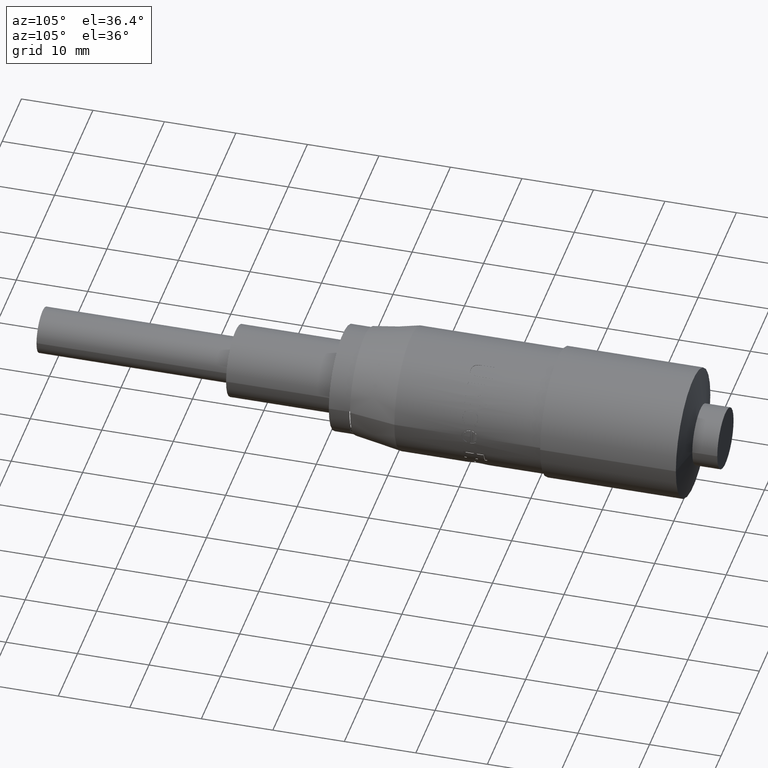
[diagram: clean part render]
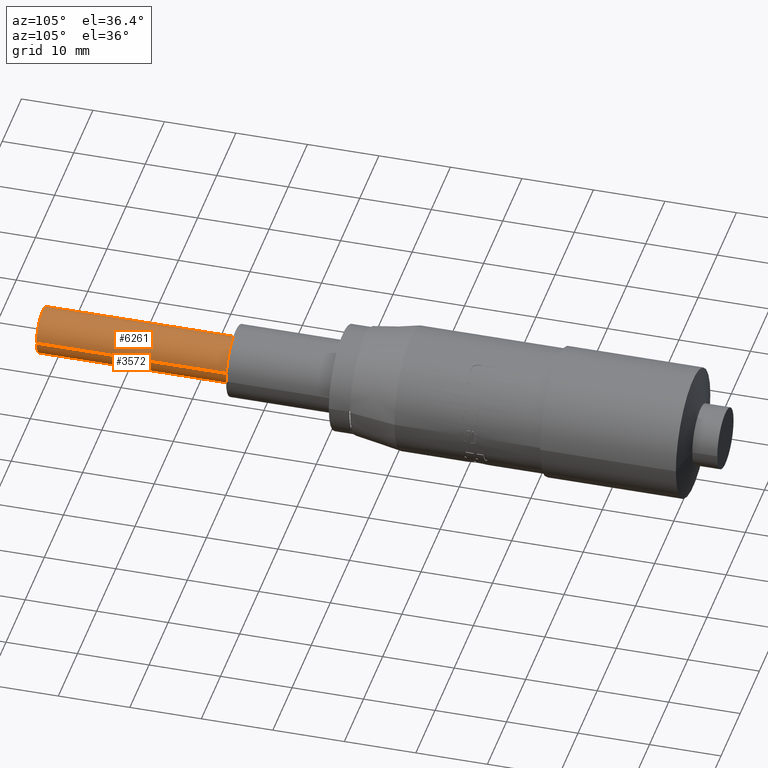
[diagram: same view with one multi-face feature highlighted, each face labeled with its STEP entity id]
A machine part, auxiliary view. The highlighted faces form ONE feature: a constant-radius fillet chain: 2 tangent blend faces with common blend radius 3.175 mm. The faces share edges in the B-rep.
Their STEP definitions:
[1] entity #6261 (Cylinder):
#125 = EDGE_CURVE ( 'NONE', #4423, #4210, #1801, .T. ) ;
#525 = DIRECTION ( 'NONE',  ( -1.058937486943297600E-016, 1.000000000000000000, -0.0000000000000000000 ) ) ;
#687 = CARTESIAN_POINT ( 'NONE',  ( 30.47796289245997100, -29.97381721609986700, 28.87709965591408000 ) ) ;
#692 = DIRECTION ( 'NONE',  ( -1.058937486943297600E-016, 1.000000000000000000, -0.0000000000000000000 ) ) ;
#1144 = ORIENTED_EDGE ( 'NONE', *, *, #3514, .T. ) ;
#1340 = CARTESIAN_POINT ( 'NONE',  ( 30.47796289245996700, 45.02618278390013300, 28.87709965591408000 ) ) ;
#1391 = ORIENTED_EDGE ( 'NONE', *, *, #9741, .T. ) ;
#1407 = CARTESIAN_POINT ( 'NONE',  ( 33.65296289245996100, 41.06720585310775100, 28.87709965591408000 ) ) ;
#1660 = ORIENTED_EDGE ( 'NONE', *, *, #5749, .T. ) ;
#1801 = LINE ( 'NONE', #9529, #10928 ) ;
#2003 = AXIS2_PLACEMENT_3D ( 'NONE', #8880, #3577, #9769 ) ;
#2225 = VERTEX_POINT ( 'NONE', #3353 ) ;
#2740 = AXIS2_PLACEMENT_3D ( 'NONE', #4054, #10236, #4944 ) ;
#3162 = ORIENTED_EDGE ( 'NONE', *, *, #125, .F. ) ;
#3353 = CARTESIAN_POINT ( 'NONE',  ( 36.82796289245995800, 45.02618278390013300, 28.87709965591408000 ) ) ;
#3514 = EDGE_CURVE ( 'NONE', #2225, #4210, #6814, .T. ) ;
#3544 = FACE_OUTER_BOUND ( 'NONE', #4909, .T. ) ;
#3577 = DIRECTION ( 'NONE',  ( -1.058937486943297600E-016, 1.000000000000000000, -0.0000000000000000000 ) ) ;
#4054 = CARTESIAN_POINT ( 'NONE',  ( 33.65296289245996100, 45.02618278390013300, 28.87709965591408000 ) ) ;
#4210 = VERTEX_POINT ( 'NONE', #1340 ) ;
#4342 = LINE ( 'NONE', #4353, #8776 ) ;
#4353 = CARTESIAN_POINT ( 'NONE',  ( 36.82796289245995800, 41.06720585310775100, 28.87709965591408000 ) ) ;
#4423 = VERTEX_POINT ( 'NONE', #687 ) ;
#4909 = EDGE_LOOP ( 'NONE', ( #1660, #1391, #1144, #3162 ) ) ;
#4944 = DIRECTION ( 'NONE',  ( 1.000000000000000000, 0.0000000000000000000, 0.0000000000000000000 ) ) ;
#5678 = VERTEX_POINT ( 'NONE', #7890 ) ;
#5749 = EDGE_CURVE ( 'NONE', #4423, #5678, #5930, .T. ) ;
#5852 = DIRECTION ( 'NONE',  ( -1.000000000000000000, 0.0000000000000000000, 0.0000000000000000000 ) ) ;
#5930 = CIRCLE ( 'NONE', #2003, 3.174999999999997200 ) ;
#6261 = ADVANCED_FACE ( 'NONE', ( #3544 ), #7147, .T. ) ;
#6814 = CIRCLE ( 'NONE', #2740, 3.174999999999997200 ) ;
#7147 = CYLINDRICAL_SURFACE ( 'NONE', #9498, 3.174999999999997200 ) ;
#7890 = CARTESIAN_POINT ( 'NONE',  ( 36.82796289245996500, -29.97381721609986700, 28.87709965591408000 ) ) ;
#8776 = VECTOR ( 'NONE', #10546, 1000.000000000000000 ) ;
#8880 = CARTESIAN_POINT ( 'NONE',  ( 33.65296289245996800, -29.97381721609986700, 28.87709965591408000 ) ) ;
#9498 = AXIS2_PLACEMENT_3D ( 'NONE', #1407, #525, #5852 ) ;
#9529 = CARTESIAN_POINT ( 'NONE',  ( 30.47796289245996300, 41.06720585310775100, 28.87709965591408000 ) ) ;
#9741 = EDGE_CURVE ( 'NONE', #5678, #2225, #4342, .T. ) ;
#9769 = DIRECTION ( 'NONE',  ( -1.000000000000000000, 0.0000000000000000000, 0.0000000000000000000 ) ) ;
#10236 = DIRECTION ( 'NONE',  ( 1.058937486943297600E-016, -1.000000000000000000, 0.0000000000000000000 ) ) ;
#10546 = DIRECTION ( 'NONE',  ( -1.058937486943297600E-016, 1.000000000000000000, -0.0000000000000000000 ) ) ;
#10928 = VECTOR ( 'NONE', #692, 1000.000000000000000 ) ;
[2] entity #3572 (Cylinder):
#125 = EDGE_CURVE ( 'NONE', #4423, #4210, #1801, .T. ) ;
#277 = ORIENTED_EDGE ( 'NONE', *, *, #9741, .F. ) ;
#447 = ORIENTED_EDGE ( 'NONE', *, *, #5387, .T. ) ;
#687 = CARTESIAN_POINT ( 'NONE',  ( 30.47796289245997100, -29.97381721609986700, 28.87709965591408000 ) ) ;
#692 = DIRECTION ( 'NONE',  ( -1.058937486943297600E-016, 1.000000000000000000, -0.0000000000000000000 ) ) ;
#722 = CARTESIAN_POINT ( 'NONE',  ( 33.65296289245996100, 45.02618278390013300, 28.87709965591408000 ) ) ;
#1340 = CARTESIAN_POINT ( 'NONE',  ( 30.47796289245996700, 45.02618278390013300, 28.87709965591408000 ) ) ;
#1434 = DIRECTION ( 'NONE',  ( -1.058937486943297600E-016, 1.000000000000000000, -0.0000000000000000000 ) ) ;
#1613 = DIRECTION ( 'NONE',  ( 1.000000000000000000, 0.0000000000000000000, 0.0000000000000000000 ) ) ;
#1655 = CIRCLE ( 'NONE', #2816, 3.174999999999997200 ) ;
#1801 = LINE ( 'NONE', #9529, #10928 ) ;
#2225 = VERTEX_POINT ( 'NONE', #3353 ) ;
#2816 = AXIS2_PLACEMENT_3D ( 'NONE', #722, #6905, #1613 ) ;
#3353 = CARTESIAN_POINT ( 'NONE',  ( 36.82796289245995800, 45.02618278390013300, 28.87709965591408000 ) ) ;
#3572 = ADVANCED_FACE ( 'NONE', ( #11248 ), #5698, .T. ) ;
#3611 = DIRECTION ( 'NONE',  ( -1.058937486943297600E-016, 1.000000000000000000, -0.0000000000000000000 ) ) ;
#4210 = VERTEX_POINT ( 'NONE', #1340 ) ;
#4342 = LINE ( 'NONE', #4353, #8776 ) ;
#4353 = CARTESIAN_POINT ( 'NONE',  ( 36.82796289245995800, 41.06720585310775100, 28.87709965591408000 ) ) ;
#4423 = VERTEX_POINT ( 'NONE', #687 ) ;
#5387 = EDGE_CURVE ( 'NONE', #4210, #2225, #1655, .T. ) ;
#5678 = VERTEX_POINT ( 'NONE', #7890 ) ;
#5698 = CYLINDRICAL_SURFACE ( 'NONE', #6899, 3.174999999999997200 ) ;
#5876 = DIRECTION ( 'NONE',  ( -1.000000000000000000, 0.0000000000000000000, 0.0000000000000000000 ) ) ;
#5967 = AXIS2_PLACEMENT_3D ( 'NONE', #8915, #3611, #9804 ) ;
#6733 = CARTESIAN_POINT ( 'NONE',  ( 33.65296289245996100, 41.06720585310775100, 28.87709965591408000 ) ) ;
#6899 = AXIS2_PLACEMENT_3D ( 'NONE', #6733, #1434, #5876 ) ;
#6905 = DIRECTION ( 'NONE',  ( 1.058937486943297600E-016, -1.000000000000000000, 0.0000000000000000000 ) ) ;
#7551 = ORIENTED_EDGE ( 'NONE', *, *, #9388, .T. ) ;
#7890 = CARTESIAN_POINT ( 'NONE',  ( 36.82796289245996500, -29.97381721609986700, 28.87709965591408000 ) ) ;
#8695 = EDGE_LOOP ( 'NONE', ( #277, #7551, #8722, #447 ) ) ;
#8722 = ORIENTED_EDGE ( 'NONE', *, *, #125, .T. ) ;
#8776 = VECTOR ( 'NONE', #10546, 1000.000000000000000 ) ;
#8915 = CARTESIAN_POINT ( 'NONE',  ( 33.65296289245996800, -29.97381721609986700, 28.87709965591408000 ) ) ;
#9388 = EDGE_CURVE ( 'NONE', #5678, #4423, #10016, .T. ) ;
#9529 = CARTESIAN_POINT ( 'NONE',  ( 30.47796289245996300, 41.06720585310775100, 28.87709965591408000 ) ) ;
#9741 = EDGE_CURVE ( 'NONE', #5678, #2225, #4342, .T. ) ;
#9804 = DIRECTION ( 'NONE',  ( -1.000000000000000000, 0.0000000000000000000, 0.0000000000000000000 ) ) ;
#10016 = CIRCLE ( 'NONE', #5967, 3.174999999999997200 ) ;
#10546 = DIRECTION ( 'NONE',  ( -1.058937486943297600E-016, 1.000000000000000000, -0.0000000000000000000 ) ) ;
#10928 = VECTOR ( 'NONE', #692, 1000.000000000000000 ) ;
#11248 = FACE_OUTER_BOUND ( 'NONE', #8695, .T. ) ;